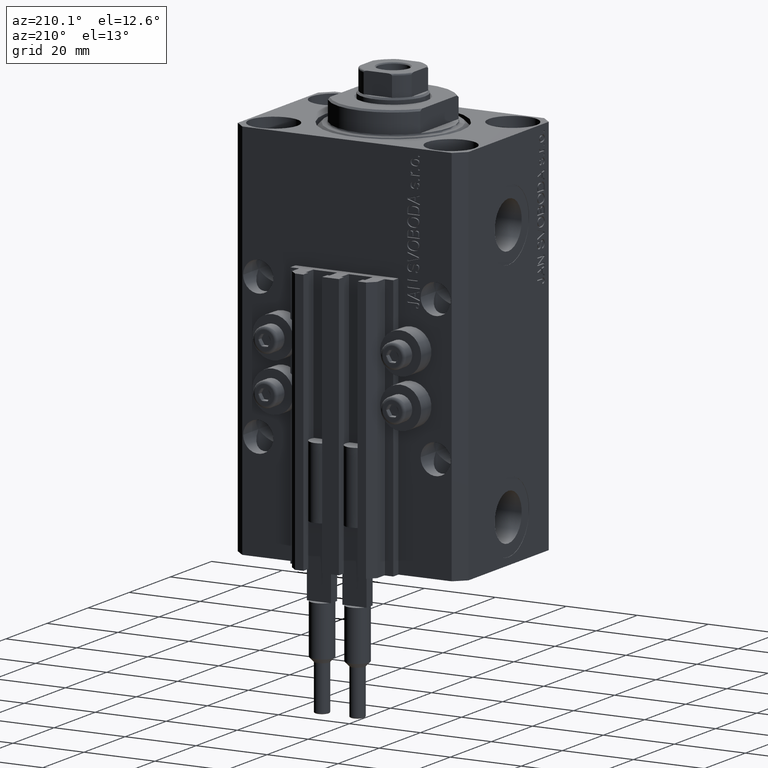
[diagram: clean part render]
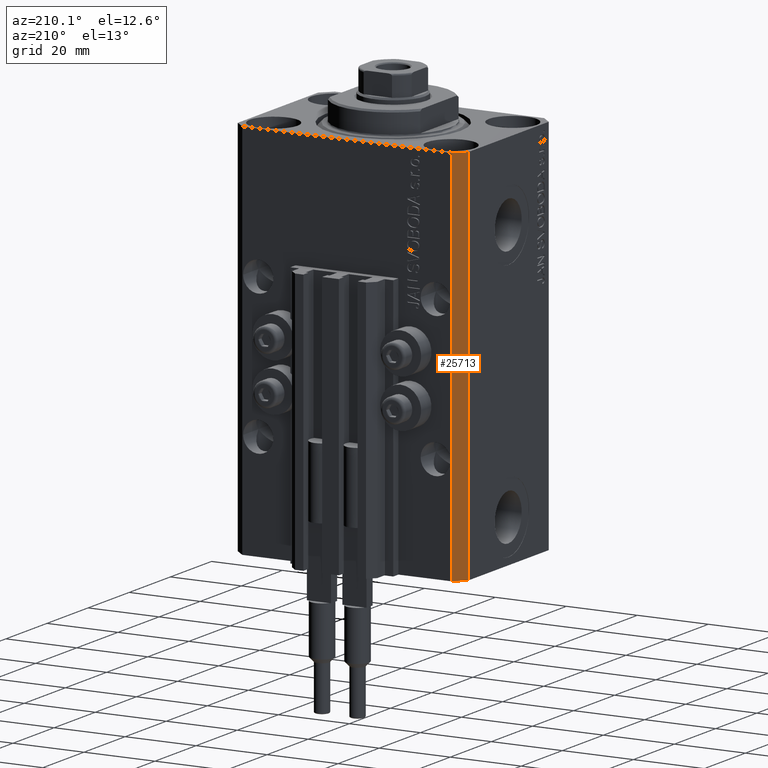
[diagram: same view with one face highlighted and labeled with its STEP entity id]
A machine part, auxiliary view. The second image highlights one B-rep face of the part: STEP entity #25713.
In plain terms, the highlighted planar face has unit normal (-0.7071, 0.7071, 0).
Its self-contained STEP definition (entity closure, byte-faithful):
#801 = VECTOR ( 'NONE', #45350, 1000.000000000000114 ) ;
#2897 = LINE ( 'NONE', #47793, #21892 ) ;
#4857 = EDGE_CURVE ( 'NONE', #37936, #10778, #40169, .T. ) ;
#6850 = EDGE_LOOP ( 'NONE', ( #38780, #39796, #34630, #38262 ) ) ;
#7634 = CARTESIAN_POINT ( 'NONE',  ( -29.49999999999650413, 22.49999999999949907, 0.000000000000000000 ) ) ;
#10778 = VERTEX_POINT ( 'NONE', #34413 ) ;
#10970 = CARTESIAN_POINT ( 'NONE',  ( -32.49999999999650413, 19.49999999999949907, -107.0000000000000000 ) ) ;
#11731 = PLANE ( 'NONE',  #12969 ) ;
#12969 = AXIS2_PLACEMENT_3D ( 'NONE', #26868, #37548, #14714 ) ;
#13265 = EDGE_CURVE ( 'NONE', #30282, #10778, #22044, .T. ) ;
#14642 = LINE ( 'NONE', #29546, #40062 ) ;
#14714 = DIRECTION ( 'NONE',  ( -0.7071067811865474617, -0.7071067811865474617, 0.000000000000000000 ) ) ;
#21892 = VECTOR ( 'NONE', #44313, 1000.000000000000114 ) ;
#22044 = LINE ( 'NONE', #7634, #801 ) ;
#25713 = ADVANCED_FACE ( 'NONE', ( #33584 ), #11731, .T. ) ;
#25818 = DIRECTION ( 'NONE',  ( 0.000000000000000000, 0.000000000000000000, 1.000000000000000000 ) ) ;
#26868 = CARTESIAN_POINT ( 'NONE',  ( -29.49999999999650413, 22.49999999999949907, -107.0000000000000000 ) ) ;
#28030 = DIRECTION ( 'NONE',  ( 0.000000000000000000, 0.000000000000000000, 1.000000000000000000 ) ) ;
#28961 = EDGE_CURVE ( 'NONE', #36192, #30282, #14642, .T. ) ;
#29546 = CARTESIAN_POINT ( 'NONE',  ( -29.49999999999650413, 22.49999999999949907, -107.0000000000000000 ) ) ;
#30282 = VERTEX_POINT ( 'NONE', #44302 ) ;
#30741 = VECTOR ( 'NONE', #28030, 1000.000000000000000 ) ;
#33584 = FACE_OUTER_BOUND ( 'NONE', #6850, .T. ) ;
#33787 = EDGE_CURVE ( 'NONE', #36192, #37936, #2897, .T. ) ;
#34413 = CARTESIAN_POINT ( 'NONE',  ( -32.49999999999650413, 19.49999999999949907, 0.000000000000000000 ) ) ;
#34630 = ORIENTED_EDGE ( 'NONE', *, *, #33787, .T. ) ;
#36192 = VERTEX_POINT ( 'NONE', #46684 ) ;
#37548 = DIRECTION ( 'NONE',  ( -0.7071067811865475727, 0.7071067811865475727, 0.000000000000000000 ) ) ;
#37936 = VERTEX_POINT ( 'NONE', #10970 ) ;
#38262 = ORIENTED_EDGE ( 'NONE', *, *, #4857, .T. ) ;
#38780 = ORIENTED_EDGE ( 'NONE', *, *, #13265, .F. ) ;
#39432 = CARTESIAN_POINT ( 'NONE',  ( -32.49999999999650413, 19.49999999999949907, -107.0000000000000000 ) ) ;
#39796 = ORIENTED_EDGE ( 'NONE', *, *, #28961, .F. ) ;
#40062 = VECTOR ( 'NONE', #25818, 1000.000000000000000 ) ;
#40169 = LINE ( 'NONE', #39432, #30741 ) ;
#44302 = CARTESIAN_POINT ( 'NONE',  ( -29.49999999999650413, 22.49999999999949907, 0.000000000000000000 ) ) ;
#44313 = DIRECTION ( 'NONE',  ( -0.7071067811865474617, -0.7071067811865474617, 0.000000000000000000 ) ) ;
#45350 = DIRECTION ( 'NONE',  ( -0.7071067811865474617, -0.7071067811865474617, 0.000000000000000000 ) ) ;
#46684 = CARTESIAN_POINT ( 'NONE',  ( -29.49999999999650413, 22.49999999999949907, -107.0000000000000000 ) ) ;
#47793 = CARTESIAN_POINT ( 'NONE',  ( -29.49999999999650413, 22.49999999999949907, -107.0000000000000000 ) ) ;